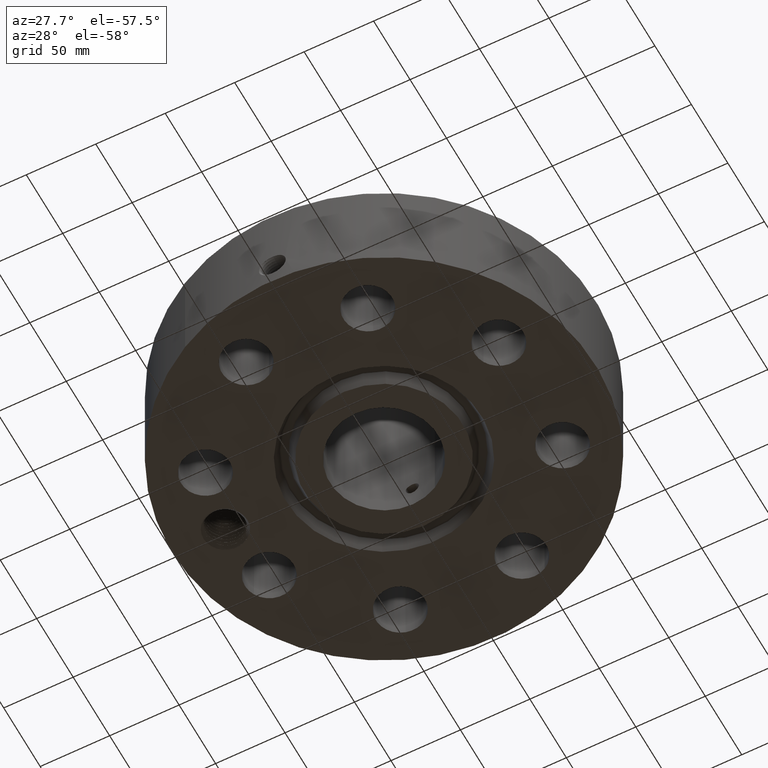
[diagram: clean part render]
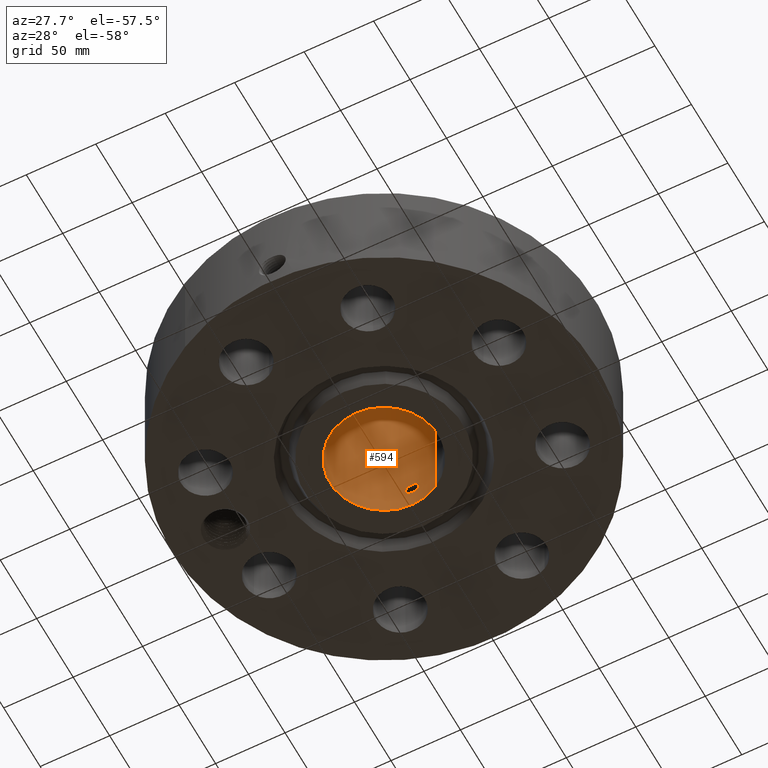
[diagram: same view with one face highlighted and labeled with its STEP entity id]
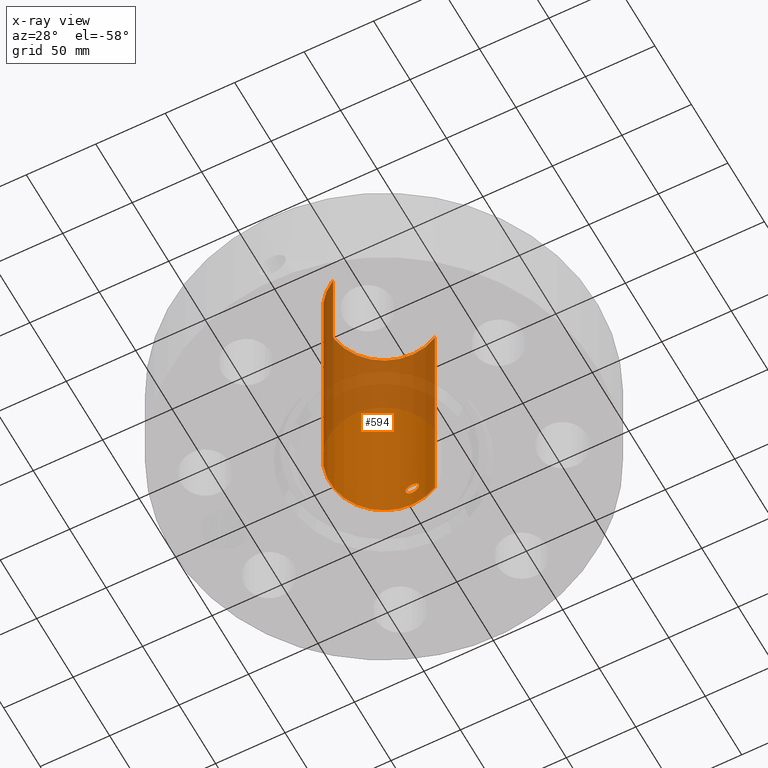
[diagram: x-ray of the same camera — body ghosted, the highlighted face saturated]
A machine part, auxiliary view. The second image highlights one B-rep face of the part: STEP entity #594.
The next image is the same camera in x-ray: the body ghosted, the highlighted face saturated — about 43% of this face is hidden behind the body in this view.
In plain terms, the highlighted cylindrical surface (partial cylindrical patch) has radius 38.9636 mm, axis along (0, 0, -1).
Its self-contained STEP definition (entity closure, byte-faithful):
#232=AXIS2_PLACEMENT_3D('Cylinder Axis2P3D',#229,#230,#231) ;
#533=AXIS2_PLACEMENT_3D('Circle Axis2P3D',#531,#532,$) ;
#543=AXIS2_PLACEMENT_3D('Circle Axis2P3D',#541,#542,$) ;
#229=CARTESIAN_POINT('Axis2P3D Location',(0.,0.,3.49750000001)) ;
#238=CARTESIAN_POINT('Vertex',(0.735438776222,1.34621164995,6.99500000003)) ;
#240=CARTESIAN_POINT('Vertex',(-0.735438776222,-1.34621164995,6.99500000003)) ;
#243=CARTESIAN_POINT('Line Origine',(0.735438776222,1.34621164995,3.49750000001)) ;
#247=CARTESIAN_POINT('Vertex',(0.735438776222,1.34621164995,-7.27327209833E-015)) ;
#254=CARTESIAN_POINT('Vertex',(-0.735438776222,-1.34621164995,-7.27327209833E-015)) ;
#257=CARTESIAN_POINT('Line Origine',(-0.735438776222,-1.34621164995,3.49750000001)) ;
#531=CARTESIAN_POINT('Axis2P3D Location',(0.,0.,6.99500000003)) ;
#541=CARTESIAN_POINT('Axis2P3D Location',(0.,0.,-7.83275456743E-015)) ;
#553=CARTESIAN_POINT('Control Point',(-0.164546730355,1.52514929549,0.660107711514)) ;
#554=CARTESIAN_POINT('Control Point',(-0.153730987743,1.52631619443,0.640309627462)) ;
#555=CARTESIAN_POINT('Control Point',(-0.139943198903,1.52770675216,0.622148390878)) ;
#556=CARTESIAN_POINT('Control Point',(-0.123507748956,1.52917958204,0.606208112031)) ;
#557=CARTESIAN_POINT('Control Point',(-0.0771300553275,1.53257507292,0.573187347528)) ;
#558=CARTESIAN_POINT('Control Point',(-0.0211174569635,1.53443807468,0.558997528331)) ;
#559=CARTESIAN_POINT('Control Point',(0.0139156713045,1.53452842349,0.558336513359)) ;
#560=CARTESIAN_POINT('Control Point',(0.0704492146738,1.53291709887,0.570416237491)) ;
#561=CARTESIAN_POINT('Control Point',(0.118051609547,1.52962023944,0.601691344323)) ;
#562=CARTESIAN_POINT('Control Point',(0.135083668781,1.52815406454,0.617020195618)) ;
#563=CARTESIAN_POINT('Control Point',(0.174443725809,1.52429835588,0.665045646807)) ;
#564=CARTESIAN_POINT('Control Point',(0.192228358513,1.52190251018,0.726011178564)) ;
#565=CARTESIAN_POINT('Control Point',(0.192989830599,1.52179279367,0.766827431126)) ;
#566=CARTESIAN_POINT('Control Point',(0.183177815638,1.52313920758,0.805788315639)) ;
#567=CARTESIAN_POINT('Control Point',(0.164546730355,1.52514929549,0.839892288492)) ;
#568=CARTESIAN_POINT('Vertex',(-0.164546730355,1.52514929549,0.660107711514)) ;
#570=CARTESIAN_POINT('Vertex',(0.164546730355,1.52514929549,0.839892288492)) ;
#574=CARTESIAN_POINT('Control Point',(-0.164546730355,1.52514929549,0.660107711514)) ;
#575=CARTESIAN_POINT('Control Point',(-0.180678501153,1.52340885595,0.68963671989)) ;
#576=CARTESIAN_POINT('Control Point',(-0.190198610862,1.52216597312,0.722806957179)) ;
#577=CARTESIAN_POINT('Control Point',(-0.191983916517,1.52191948773,0.757672929802)) ;
#578=CARTESIAN_POINT('Control Point',(-0.181803961375,1.52330998219,0.814416313925)) ;
#579=CARTESIAN_POINT('Control Point',(-0.152241471362,1.52650402747,0.862922518777)) ;
#580=CARTESIAN_POINT('Control Point',(-0.137530674684,1.52795516066,0.880436351995)) ;
#581=CARTESIAN_POINT('Control Point',(-0.0947821356087,1.53152507337,0.918008404844)) ;
#582=CARTESIAN_POINT('Control Point',(-0.0405445785306,1.53401799098,0.937840710859)) ;
#583=CARTESIAN_POINT('Control Point',(-0.00574962850224,1.53459489032,0.942090799751)) ;
#584=CARTESIAN_POINT('Control Point',(0.0570897525247,1.53362895881,0.935262592149)) ;
#585=CARTESIAN_POINT('Control Point',(0.11164781907,1.53021522373,0.904518030764)) ;
#586=CARTESIAN_POINT('Control Point',(0.133384256491,1.52836415273,0.886192091061)) ;
#587=CARTESIAN_POINT('Control Point',(0.151221197197,1.52658697305,0.864284513323)) ;
#588=CARTESIAN_POINT('Control Point',(0.164546730355,1.52514929549,0.839892288492)) ;
#230=DIRECTION('Axis2P3D Direction',(0.,0.,-0.0393700787402)) ;
#231=DIRECTION('Axis2P3D XDirection',(-0.0188750212049,-0.0345504945626,0.)) ;
#244=DIRECTION('Vector Direction',(0.,0.,-0.0393700787402)) ;
#258=DIRECTION('Vector Direction',(0.,0.,-0.0393700787402)) ;
#532=DIRECTION('Axis2P3D Direction',(0.,0.,-0.0393700787402)) ;
#542=DIRECTION('Axis2P3D Direction',(0.,0.,-0.0393700787402)) ;
#245=VECTOR('Line Direction',#244,0.0393700787402) ;
#259=VECTOR('Line Direction',#258,0.0393700787402) ;
#547=ORIENTED_EDGE('',*,*,#535,.F.) ;
#548=ORIENTED_EDGE('',*,*,#261,.T.) ;
#549=ORIENTED_EDGE('',*,*,#545,.T.) ;
#550=ORIENTED_EDGE('',*,*,#249,.F.) ;
#591=ORIENTED_EDGE('',*,*,#572,.F.) ;
#592=ORIENTED_EDGE('',*,*,#589,.T.) ;
#593=FACE_BOUND('',#590,.T.) ;
#594=ADVANCED_FACE('PartBody',(#551,#593),#233,.F.) ;
#552=B_SPLINE_CURVE_WITH_KNOTS('',5,(#553,#554,#555,#556,#557,#558,#559,#560,#561,#562,#563,#564,#565,#566,#567),.UNSPECIFIED.,.F.,.U.,(6,3,3,3,6),(0.,4.05727165947,10.1291862366,14.1895477936,21.1785615874),.UNSPECIFIED.) ;
#573=B_SPLINE_CURVE_WITH_KNOTS('',5,(#574,#575,#576,#577,#578,#579,#580,#581,#582,#583,#584,#585,#586,#587,#588),.UNSPECIFIED.,.F.,.U.,(6,3,3,3,6),(0.,6.05145470141,10.1044732841,16.1798431381,21.1786037383),.UNSPECIFIED.) ;
#534=CIRCLE('generated circle',#533,1.53400000001) ;
#544=CIRCLE('generated circle',#543,1.53400000001) ;
#233=CYLINDRICAL_SURFACE('generated cylinder',#232,1.53400000001) ;
#249=EDGE_CURVE('',#239,#248,#246,.T.) ;
#261=EDGE_CURVE('',#241,#255,#260,.T.) ;
#535=EDGE_CURVE('',#241,#239,#534,.T.) ;
#545=EDGE_CURVE('',#255,#248,#544,.T.) ;
#572=EDGE_CURVE('',#569,#571,#552,.T.) ;
#589=EDGE_CURVE('',#569,#571,#573,.T.) ;
#546=EDGE_LOOP('',(#547,#548,#549,#550)) ;
#590=EDGE_LOOP('',(#591,#592)) ;
#551=FACE_OUTER_BOUND('',#546,.T.) ;
#246=LINE('Line',#243,#245) ;
#260=LINE('Line',#257,#259) ;
#239=VERTEX_POINT('',#238) ;
#241=VERTEX_POINT('',#240) ;
#248=VERTEX_POINT('',#247) ;
#255=VERTEX_POINT('',#254) ;
#569=VERTEX_POINT('',#568) ;
#571=VERTEX_POINT('',#570) ;